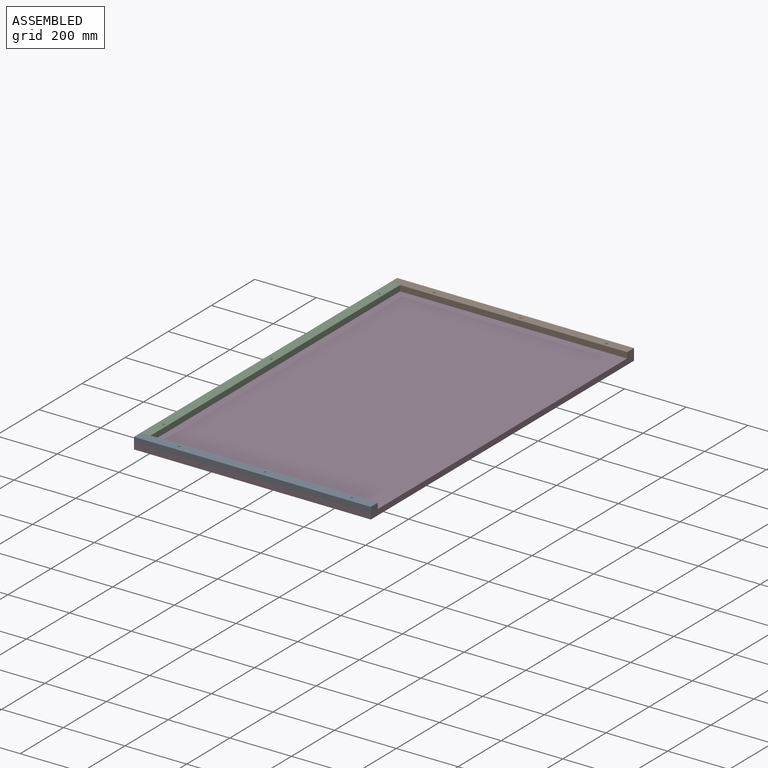
[diagram: assembled view]
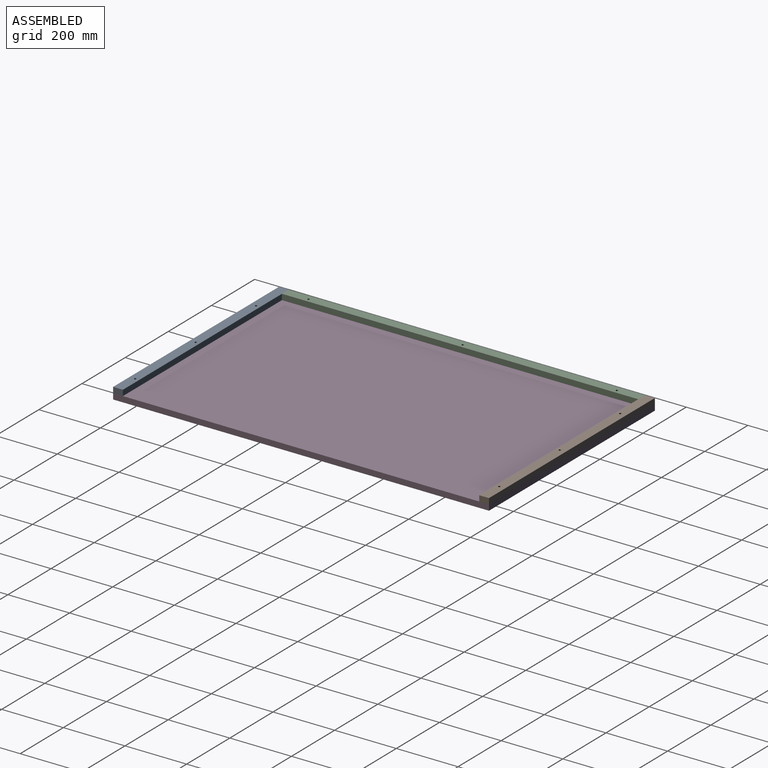
[diagram: assembled view, second angle]
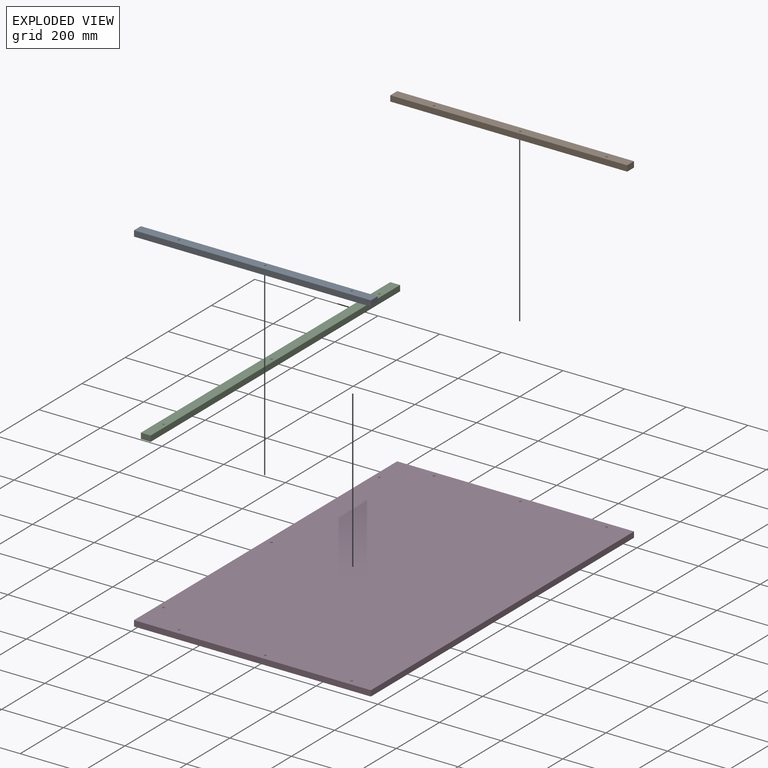
[diagram: exploded view]
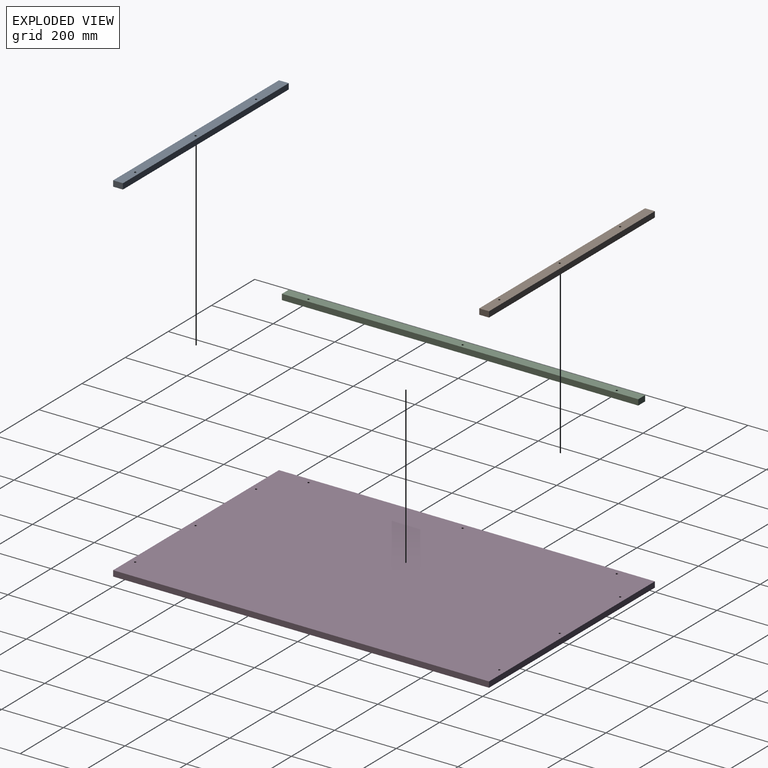
[diagram: exploded view, second angle]
ASSEMBLY  parts=4 mates=3
PART A: 9 faces, bbox 31.8x768.4x18.5 mm
  f0: plane 768.35x31.75mm, normal (0,0,1), area 24275.1mm2, adj f1,f3,f4,f5,f6,f7,f8
  f1: plane 768.35x18.5mm, normal (-1,0,0), area 14214.5mm2, adj f0,f2,f4,f5
  f2: plane 768.35x31.75mm, normal (0,0,-1), area 24275.1mm2, adj f1,f3,f4,f5,f6,f7,f8
  f3: plane 768.35x18.5mm, normal (1,0,0), area 14214.5mm2, adj f0,f2,f4,f5
  f4: plane 31.75x18.5mm, normal (0,-1,0), area 587.4mm2, adj f0,f1,f2,f3
  f5: plane 31.75x18.5mm, normal (0,1,0), area 587.4mm2, adj f0,f1,f2,f3
  f6: cylinder r=3.57mm len=18.5mm, axis (0,0,1), area 414.8mm2, adj f0,f2
  f7: cylinder r=3.57mm len=18.5mm, axis (0,0,1), area 414.8mm2, adj f0,f2
  f8: cylinder r=3.57mm len=18.5mm, axis (0,0,1), area 414.8mm2, adj f0,f2
PART B: same geometry as A
PART C: 9 faces, bbox 31.8x1155.7x18.5 mm
  f0: plane 1155.7x18.5mm, normal (-1,0,0), area 21380.4mm2, adj f1,f3,f4,f5
  f1: plane 1155.7x31.75mm, normal (0,0,-1), area 36573.4mm2, adj f0,f2,f4,f5,f6,f7,f8
  f2: plane 1155.7x18.5mm, normal (1,0,0), area 21380.4mm2, adj f1,f3,f4,f5
  f3: plane 1155.7x31.75mm, normal (0,0,1), area 36573.4mm2, adj f0,f2,f4,f5,f6,f7,f8
  f4: plane 31.75x18.5mm, normal (0,-1,0), area 587.4mm2, adj f0,f1,f2,f3
  f5: plane 31.75x18.5mm, normal (0,1,0), area 587.4mm2, adj f0,f1,f2,f3
  f6: cylinder r=3.57mm len=18.5mm, axis (0,0,1), area 414.8mm2, adj f1,f3
  f7: cylinder r=3.57mm len=18.5mm, axis (0,0,1), area 414.8mm2, adj f1,f3
  f8: cylinder r=3.57mm len=18.5mm, axis (0,0,1), area 414.8mm2, adj f1,f3
PART D: 33 faces, bbox 768.4x1219.2x18.5 mm
  f0: plane 1219.2x18.5mm, normal (1,0,0), area 22555.2mm2, adj f1,f3,f4,f5
  f1: plane 768.35x18.5mm, normal (0,1,0), area 14214.5mm2, adj f0,f2,f4,f5
  f2: plane 1219.2x18.5mm, normal (-1,0,0), area 22555.2mm2, adj f1,f3,f4,f5
  f3: plane 768.35x18.5mm, normal (0,-1,0), area 14214.5mm2, adj f0,f2,f4,f5
  f4: plane 1219.2x768.35mm, normal (0,0,1), area 934482.1mm2, adj f0,f1,f2,f3,f8,f11,f14,f17
  f5: plane 1219.2x768.35mm, normal (0,0,-1), area 936412.2mm2, adj f0,f1,f2,f3,f6,f9,f12,f15
  f6: cylinder r=3.57mm len=15.5mm, axis (0,0,1), area 347.6mm2, adj f5,f7
  f7: plane 18x18mm, normal (0,0,1), area 214.5mm2, adj f6,f8
  f8: cylinder r=9mm len=18mm, axis (0,0,1), area 169.6mm2, adj f4,f7
  f9: cylinder r=3.57mm len=15.5mm, axis (0,0,1), area 347.6mm2, adj f5,f10
  f10: plane 18x18mm, normal (0,0,1), area 214.5mm2, adj f9,f11
  f11: cylinder r=9mm len=18mm, axis (0,0,1), area 169.6mm2, adj f4,f10
  f12: cylinder r=3.57mm len=15.5mm, axis (0,0,1), area 347.6mm2, adj f5,f13
  f13: plane 18x18mm, normal (0,0,1), area 214.5mm2, adj f12,f14
  f14: cylinder r=9mm len=18mm, axis (0,0,1), area 169.6mm2, adj f4,f13
  f15: cylinder r=3.57mm len=15.5mm, axis (0,0,1), area 347.6mm2, adj f5,f16
  f16: plane 18x18mm, normal (0,0,1), area 214.5mm2, adj f15,f17
  f17: cylinder r=9mm len=18mm, axis (0,0,1), area 169.6mm2, adj f4,f16
  f18: cylinder r=3.57mm len=15.5mm, axis (0,0,1), area 347.6mm2, adj f5,f19
  f19: plane 18x18mm, normal (0,0,1), area 214.5mm2, adj f18,f20
  f20: cylinder r=9mm len=18mm, axis (0,0,1), area 169.6mm2, adj f4,f19
  f21: cylinder r=3.57mm len=15.5mm, axis (0,0,1), area 347.6mm2, adj f5,f22
  f22: plane 18x18mm, normal (0,0,1), area 214.5mm2, adj f21,f23
  f23: cylinder r=9mm len=18mm, axis (0,0,1), area 169.6mm2, adj f4,f22
  f24: cylinder r=3.57mm len=15.5mm, axis (0,0,1), area 347.6mm2, adj f5,f25
  f25: plane 18x18mm, normal (0,0,1), area 214.5mm2, adj f24,f26
  f26: cylinder r=9mm len=18mm, axis (0,0,1), area 169.6mm2, adj f4,f25
  f27: cylinder r=3.57mm len=15.5mm, axis (0,0,1), area 347.6mm2, adj f5,f28
  f28: plane 18x18mm, normal (0,0,1), area 214.5mm2, adj f27,f29
  f29: cylinder r=9mm len=18mm, axis (0,0,1), area 169.6mm2, adj f4,f28
  f30: cylinder r=3.57mm len=15.5mm, axis (0,0,1), area 347.6mm2, adj f5,f31
  f31: plane 18x18mm, normal (0,0,1), area 214.5mm2, adj f30,f32
  f32: cylinder r=9mm len=18mm, axis (0,0,1), area 169.6mm2, adj f4,f31
PLACE A rot(axis=(0,0,1),90deg) t=(-384.21,-590.55,9.25)mm
PLACE B rot(axis=(0.71,-0.71,0),180deg) t=(-384.21,590.55,9.25)mm
PLACE C rot(axis=(1,0,0),180deg) t=(-365.16,-577.85,9.25)mm
PLACE D rot(axis=(1,0,0),180deg) t=(-0.04,0,0)mm
MATE fastened C.f7 <-> D.f15  axis (0,0,-1) through (-365.16,0,0)mm
MATE fastened D.f30 <-> A.f7  axis (0,0,1) through (28.54,-590.55,0)mm
MATE fastened D.f21 <-> B.f7  axis (0,0,1) through (28.54,590.55,0)mm
